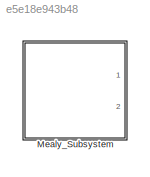
MODEL slx_e5e18e943b48
KIND model
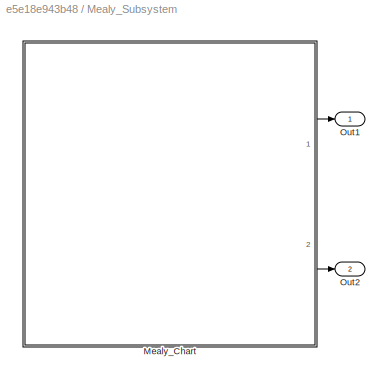
BLOCK [SubSystem] Mealy_Subsystem
  Ports = [0, 2]
  RequestExecContextInheritance = off
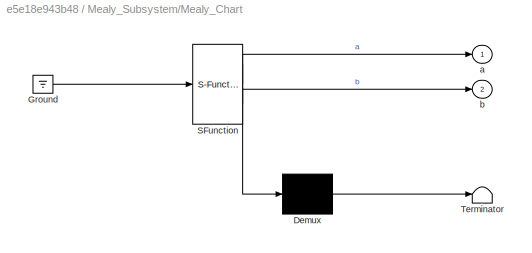
BLOCK [SubSystem] Mealy_Subsystem/Mealy_Chart
  ErrorFcn = Stateflow.Translate.translate
  PermitHierarchicalResolution = ExplicitOnly
  Ports = [0, 2]
  RequestExecContextInheritance = off
  SFBlockType = Chart
  TreatAsAtomicUnit = on
BLOCK [Demux] Mealy_Subsystem/Mealy_Chart/ Demux 
  Outputs = 1
  Ports = [1, 1]
BLOCK [Ground] Mealy_Subsystem/Mealy_Chart/ Ground 
BLOCK [S-Function] Mealy_Subsystem/Mealy_Chart/ SFunction 
  EnableBusSupport = on
  FunctionName = sf_sfun
  PortCounts = [1 3]
  Ports = [1, 3]
  Tag = Stateflow S-Function Stateflow_Mealy_example 3
BLOCK [Terminator] Mealy_Subsystem/Mealy_Chart/ Terminator 
BLOCK [Outport] Mealy_Subsystem/Mealy_Chart/a
  IconDisplay = Port number
BLOCK [Outport] Mealy_Subsystem/Mealy_Chart/b
  IconDisplay = Port number
  Port = 2
BLOCK [Outport] Mealy_Subsystem/Out1
  IconDisplay = Port number
BLOCK [Outport] Mealy_Subsystem/Out2
  IconDisplay = Port number
  Port = 2
LINE Mealy_Subsystem/Mealy_Chart:1 -> Mealy_Subsystem/Out1:1
LINE Mealy_Subsystem/Mealy_Chart:2 -> Mealy_Subsystem/Out2:1
